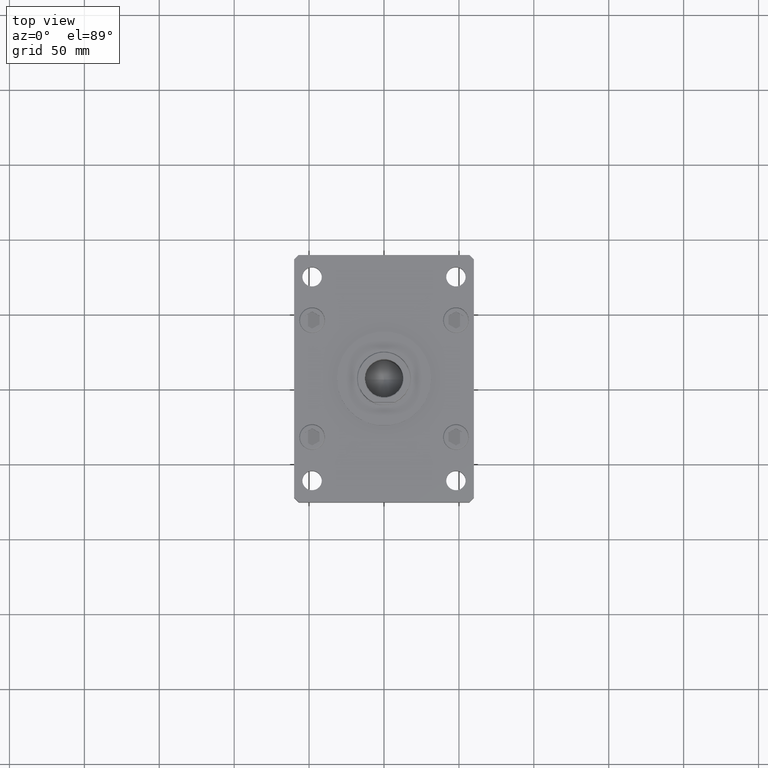
[diagram: clean part render]
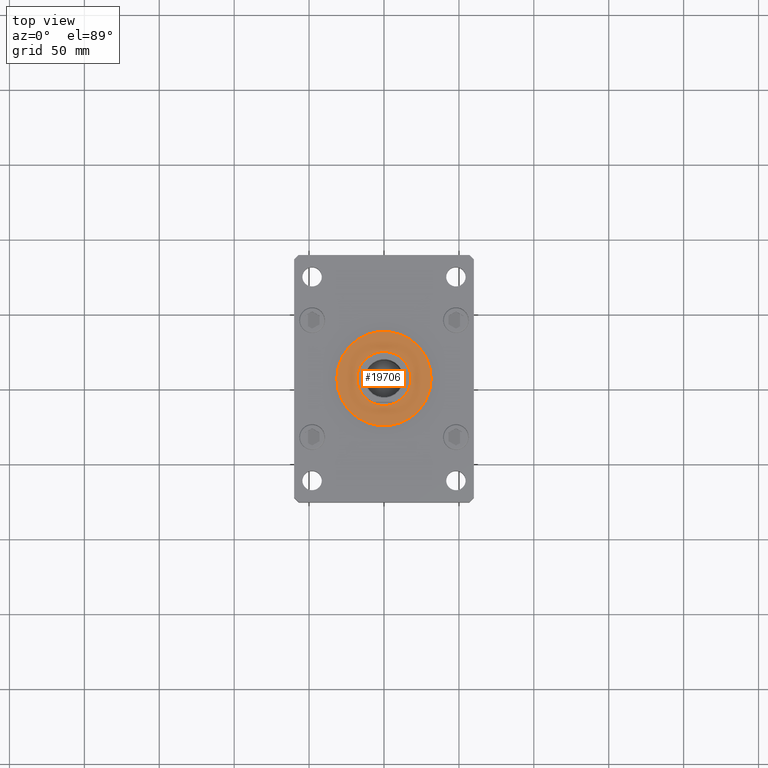
[diagram: same view with one face highlighted and labeled with its STEP entity id]
A machine part, top view. The second image highlights one B-rep face of the part: STEP entity #19706.
In plain terms, the highlighted planar face has unit normal (0, 0, 1).
Its self-contained STEP definition (entity closure, byte-faithful):
#284 = AXIS2_PLACEMENT_3D ( 'NONE', #6023, #30755, #43015 ) ;
#1193 = ORIENTED_EDGE ( 'NONE', *, *, #15353, .F. ) ;
#2016 = CIRCLE ( 'NONE', #22853, 18.00000000000000000 ) ;
#6023 = CARTESIAN_POINT ( 'NONE',  ( 0.000000000000000000, 0.000000000000000000, 22.00000000000000000 ) ) ;
#6548 = CARTESIAN_POINT ( 'NONE',  ( 0.000000000000000000, 0.000000000000000000, 22.00000000000000000 ) ) ;
#8148 = ORIENTED_EDGE ( 'NONE', *, *, #19767, .T. ) ;
#10029 = CIRCLE ( 'NONE', #29168, 31.50000000000000000 ) ;
#12271 = AXIS2_PLACEMENT_3D ( 'NONE', #16088, #16346, #32404 ) ;
#12594 = EDGE_LOOP ( 'NONE', ( #1193, #41338 ) ) ;
#14134 = CIRCLE ( 'NONE', #12271, 18.00000000000000000 ) ;
#14964 = DIRECTION ( 'NONE',  ( 0.000000000000000000, 0.000000000000000000, 1.000000000000000000 ) ) ;
#15353 = EDGE_CURVE ( 'NONE', #48140, #38671, #14134, .T. ) ;
#16088 = CARTESIAN_POINT ( 'NONE',  ( 0.000000000000000000, 0.000000000000000000, 22.00000000000000000 ) ) ;
#16346 = DIRECTION ( 'NONE',  ( 0.000000000000000000, 0.000000000000000000, 1.000000000000000000 ) ) ;
#17848 = DIRECTION ( 'NONE',  ( 1.000000000000000000, 0.000000000000000000, 0.000000000000000000 ) ) ;
#18873 = CARTESIAN_POINT ( 'NONE',  ( -18.00000000000000000, 2.204364238465235428E-15, 22.00000000000000000 ) ) ;
#19581 = CARTESIAN_POINT ( 'NONE',  ( 0.000000000000000000, 0.000000000000000000, 22.00000000000000000 ) ) ;
#19706 = ADVANCED_FACE ( 'NONE', ( #47878, #52770 ), #26659, .T. ) ;
#19767 = EDGE_CURVE ( 'NONE', #24775, #47126, #10029, .T. ) ;
#22217 = AXIS2_PLACEMENT_3D ( 'NONE', #19581, #43528, #27199 ) ;
#22853 = AXIS2_PLACEMENT_3D ( 'NONE', #33627, #34700, #17848 ) ;
#24576 = CIRCLE ( 'NONE', #284, 31.50000000000000000 ) ;
#24775 = VERTEX_POINT ( 'NONE', #52127 ) ;
#26659 = PLANE ( 'NONE',  #22217 ) ;
#27199 = DIRECTION ( 'NONE',  ( 1.000000000000000000, 0.000000000000000000, -0.000000000000000000 ) ) ;
#29168 = AXIS2_PLACEMENT_3D ( 'NONE', #6548, #14964, #48160 ) ;
#30755 = DIRECTION ( 'NONE',  ( 0.000000000000000000, 0.000000000000000000, 1.000000000000000000 ) ) ;
#32404 = DIRECTION ( 'NONE',  ( 1.000000000000000000, 0.000000000000000000, 0.000000000000000000 ) ) ;
#33627 = CARTESIAN_POINT ( 'NONE',  ( 0.000000000000000000, 0.000000000000000000, 22.00000000000000000 ) ) ;
#34700 = DIRECTION ( 'NONE',  ( 0.000000000000000000, 0.000000000000000000, 1.000000000000000000 ) ) ;
#35160 = CARTESIAN_POINT ( 'NONE',  ( 31.50000000000000000, 3.857637417314162689E-15, 22.00000000000000000 ) ) ;
#36305 = EDGE_LOOP ( 'NONE', ( #8148, #52424 ) ) ;
#38671 = VERTEX_POINT ( 'NONE', #18873 ) ;
#41338 = ORIENTED_EDGE ( 'NONE', *, *, #48998, .F. ) ;
#43015 = DIRECTION ( 'NONE',  ( 1.000000000000000000, 0.000000000000000000, 0.000000000000000000 ) ) ;
#43528 = DIRECTION ( 'NONE',  ( 0.000000000000000000, 0.000000000000000000, 1.000000000000000000 ) ) ;
#47126 = VERTEX_POINT ( 'NONE', #35160 ) ;
#47878 = FACE_BOUND ( 'NONE', #12594, .T. ) ;
#48140 = VERTEX_POINT ( 'NONE', #53243 ) ;
#48160 = DIRECTION ( 'NONE',  ( 1.000000000000000000, 0.000000000000000000, 0.000000000000000000 ) ) ;
#48998 = EDGE_CURVE ( 'NONE', #38671, #48140, #2016, .T. ) ;
#52127 = CARTESIAN_POINT ( 'NONE',  ( -31.50000000000000000, 0.000000000000000000, 22.00000000000000000 ) ) ;
#52424 = ORIENTED_EDGE ( 'NONE', *, *, #53706, .T. ) ;
#52770 = FACE_OUTER_BOUND ( 'NONE', #36305, .T. ) ;
#53243 = CARTESIAN_POINT ( 'NONE',  ( 18.00000000000000000, 0.000000000000000000, 22.00000000000000000 ) ) ;
#53706 = EDGE_CURVE ( 'NONE', #47126, #24775, #24576, .T. ) ;